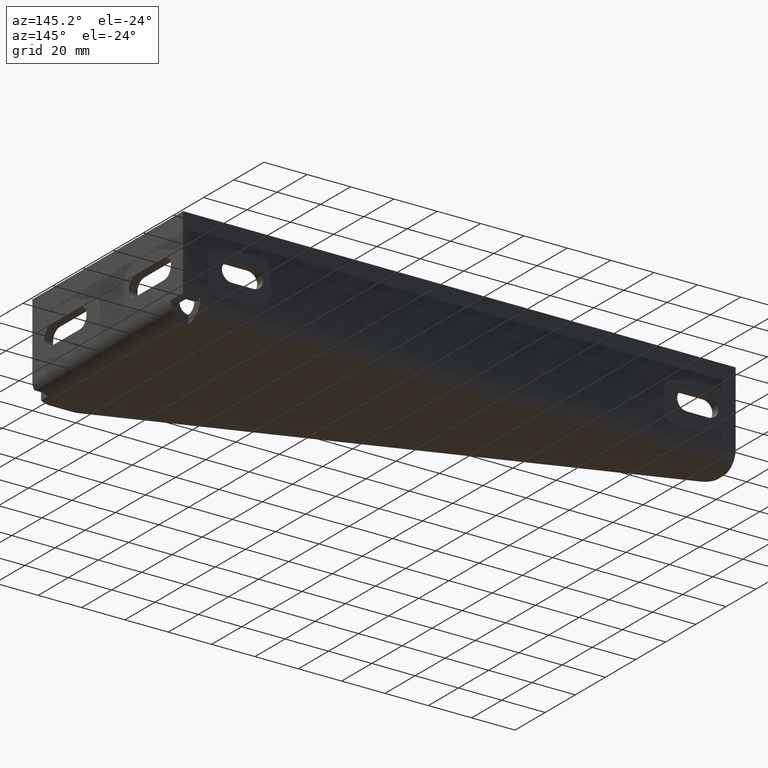
[diagram: clean part render]
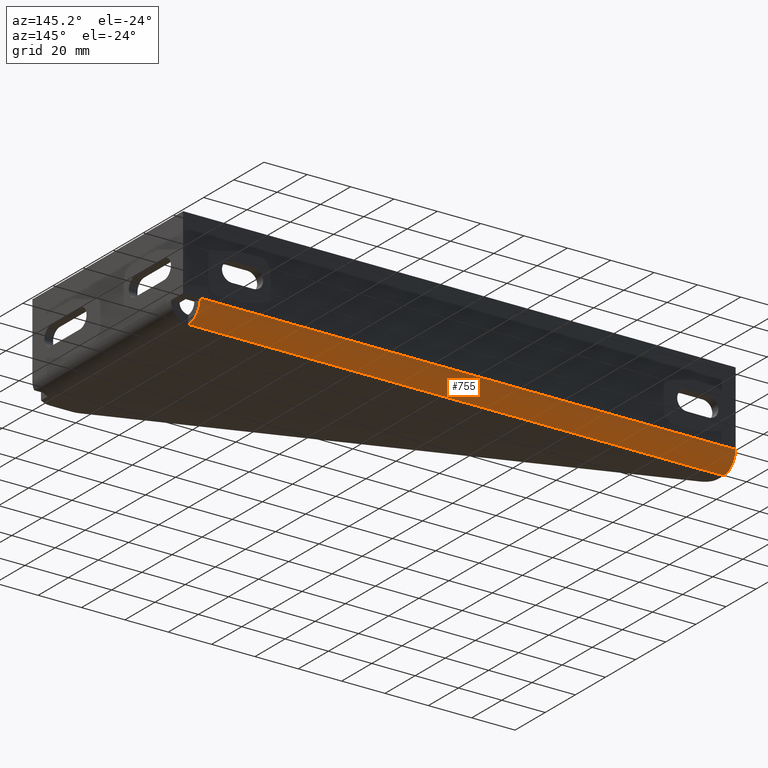
[diagram: same view with one face highlighted and labeled with its STEP entity id]
A machine part, auxiliary view. The second image highlights one B-rep face of the part: STEP entity #755.
In plain terms, the highlighted cylindrical surface (edge-blend (fillet) strip) has radius 8 mm, axis along (1, 0, 0).
Its self-contained STEP definition (entity closure, byte-faithful):
#51=CIRCLE('',#825,8.);
#52=CIRCLE('',#827,8.00000000000001);
#67=CYLINDRICAL_SURFACE('',#826,8.);
#100=FACE_OUTER_BOUND('',#143,.T.);
#143=EDGE_LOOP('',(#626,#627,#628,#629));
#191=LINE('',#1169,#267);
#223=LINE('',#1258,#299);
#267=VECTOR('',#932,247.);
#299=VECTOR('',#1026,247.);
#345=VERTEX_POINT('',#1166);
#346=VERTEX_POINT('',#1168);
#371=VERTEX_POINT('',#1249);
#372=VERTEX_POINT('',#1256);
#425=EDGE_CURVE('',#345,#346,#191,.T.);
#469=EDGE_CURVE('',#371,#346,#51,.T.);
#470=EDGE_CURVE('',#372,#345,#52,.T.);
#471=EDGE_CURVE('',#371,#372,#223,.T.);
#626=ORIENTED_EDGE('',*,*,#469,.T.);
#627=ORIENTED_EDGE('',*,*,#425,.F.);
#628=ORIENTED_EDGE('',*,*,#470,.F.);
#629=ORIENTED_EDGE('',*,*,#471,.F.);
#755=ADVANCED_FACE('',(#100),#67,.T.);
#825=AXIS2_PLACEMENT_3D('',#1254,#1020,#1021);
#826=AXIS2_PLACEMENT_3D('',#1255,#1022,#1023);
#827=AXIS2_PLACEMENT_3D('',#1257,#1024,#1025);
#932=DIRECTION('',(1.,0.,0.));
#1020=DIRECTION('center_axis',(-1.,-1.73950294196941E-27,1.14995784608259E-27));
#1021=DIRECTION('ref_axis',(-1.14995784608259E-27,-2.00035505640147E-54,
-1.));
#1022=DIRECTION('center_axis',(1.,0.,0.));
#1023=DIRECTION('ref_axis',(0.,0.,-1.));
#1024=DIRECTION('center_axis',(-1.,0.,0.));
#1025=DIRECTION('ref_axis',(0.,1.,0.));
#1026=DIRECTION('',(-1.,1.02333276947182E-18,-6.26610600298129E-35));
#1166=CARTESIAN_POINT('',(-255.,-7.99999999999999,-22.5));
#1168=CARTESIAN_POINT('',(-7.99999999999997,-7.99999999999999,-22.5));
#1169=CARTESIAN_POINT('',(-183.003811354205,-7.99999999999999,-22.5));
#1249=CARTESIAN_POINT('',(-7.99999999999997,0.,-14.5));
#1254=CARTESIAN_POINT('Origin',(-7.99999999999997,-7.99999999999999,-14.5));
#1255=CARTESIAN_POINT('Origin',(-127.5,-7.99999999999999,-14.5));
#1256=CARTESIAN_POINT('',(-255.,0.,-14.5));
#1257=CARTESIAN_POINT('Origin',(-255.,-7.99999999999999,-14.5));
#1258=CARTESIAN_POINT('',(-127.5,0.,-14.5));